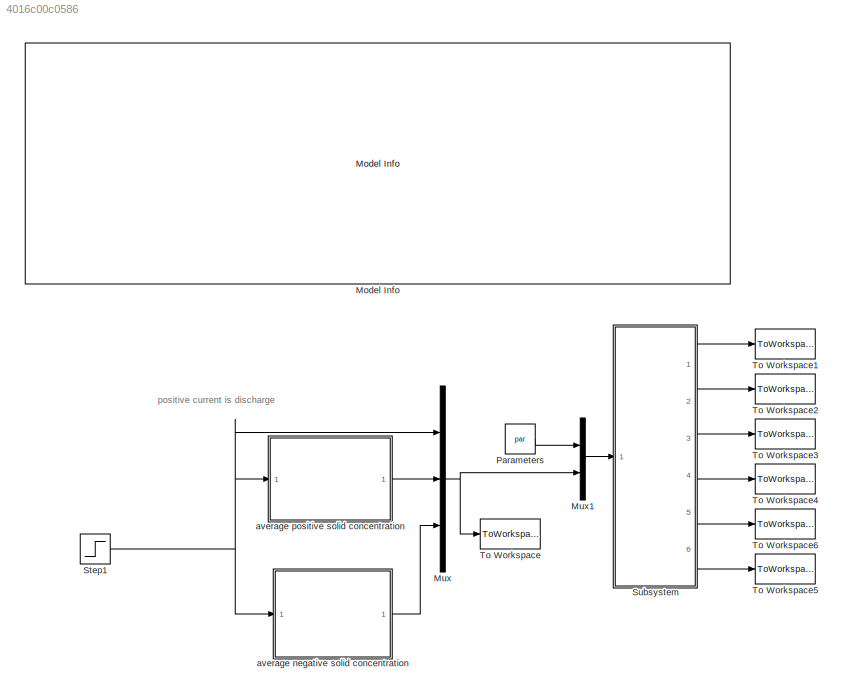
MODEL slx_4016c00c0586
KIND model
CONFIG AbsTol = auto
CONFIG EnableMultiTasking = on
CONFIG FixedStep = st
CONFIG MaxStep = 0.5
CONFIG MinStep = auto
CONFIG RelTol = 1e-3
CONFIG SampleTimeConstraint = Unconstrained
CONFIG Solver = ode3
CONFIG SolverName = ode3
CONFIG StartTime = 0
CONFIG StopTime = fin
BLOCK [Reference] Model Info  REF=simulink/Model-Wide
Utilities/Model Info
  Ports = []
  SourceBlock = simulink/Model-Wide\nUtilities/Model Info
  SourceProductBaseCode = SL
  SourceType = CMBlock
BLOCK [Mux] Mux
  DisplayOption = bar
  Inputs = 3
  Ports = [3, 1]
BLOCK [Mux] Mux1
  DisplayOption = bar
  Inputs = 2
  Ports = [2, 1]
BLOCK [Constant] Parameters
  Value = par
  VectorParams1D = off
BLOCK [Step] Step1
  After = 5
  SampleTime = 0
  Time = 0
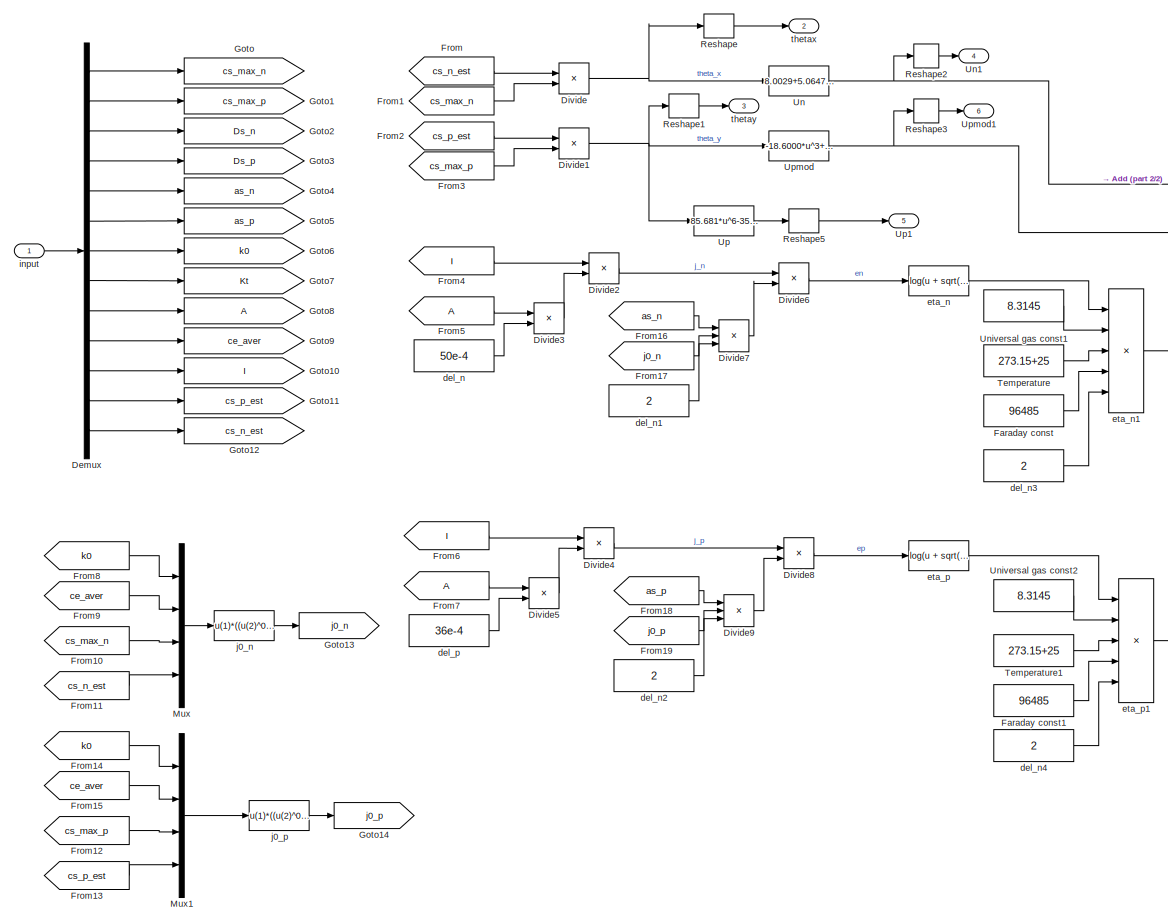
[diagram: Subsystem - part 1/2, center side, full height]
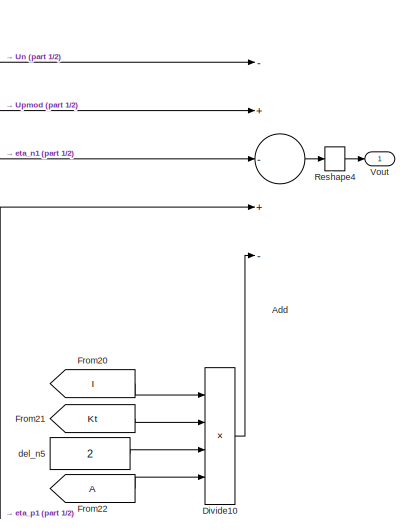
[diagram: Subsystem - part 2/2, middle right region]
BLOCK [SubSystem] Subsystem
  Ports = [1, 6]
  RequestExecContextInheritance = off
BLOCK [Sum] Subsystem/Add
  InputSameDT = off
  Inputs = -+-+-
  OutDataTypeStr = double
  Ports = [5, 1]
  SaturateOnIntegerOverflow = off
BLOCK [Demux] Subsystem/Demux
  DisplayOption = bar
  Outputs = 13
  Ports = [1, 13]
BLOCK [Product] Subsystem/Divide
  InputSameDT = off
  Inputs = */
  OutDataTypeStr = Inherit: Inherit via internal rule
  Ports = [2, 1]
  RndMeth = Floor
  SaturateOnIntegerOverflow = off
BLOCK [Product] Subsystem/Divide1
  InputSameDT = off
  Inputs = */
  OutDataTypeStr = Inherit: Inherit via internal rule
  Ports = [2, 1]
  RndMeth = Floor
  SaturateOnIntegerOverflow = off
BLOCK [Product] Subsystem/Divide10
  InputSameDT = off
  Inputs = ***/
  OutDataTypeStr = Inherit: Inherit via internal rule
  Ports = [4, 1]
  RndMeth = Floor
  SaturateOnIntegerOverflow = off
BLOCK [Product] Subsystem/Divide2
  InputSameDT = off
  Inputs = */
  OutDataTypeStr = Inherit: Inherit via internal rule
  Ports = [2, 1]
  RndMeth = Floor
  SaturateOnIntegerOverflow = off
BLOCK [Product] Subsystem/Divide3
  InputSameDT = off
  Inputs = **
  OutDataTypeStr = Inherit: Inherit via internal rule
  Ports = [2, 1]
  RndMeth = Floor
  SaturateOnIntegerOverflow = off
BLOCK [Product] Subsystem/Divide4
  InputSameDT = off
  Inputs = */
  OutDataTypeStr = Inherit: Inherit via internal rule
  Ports = [2, 1]
  RndMeth = Floor
  SaturateOnIntegerOverflow = off
BLOCK [Product] Subsystem/Divide5
  InputSameDT = off
  Inputs = **
  OutDataTypeStr = Inherit: Inherit via internal rule
  Ports = [2, 1]
  RndMeth = Floor
  SaturateOnIntegerOverflow = off
BLOCK [Product] Subsystem/Divide6
  InputSameDT = off
  Inputs = */
  OutDataTypeStr = Inherit: Inherit via internal rule
  Ports = [2, 1]
  RndMeth = Floor
  SaturateOnIntegerOverflow = off
BLOCK [Product] Subsystem/Divide7
  InputSameDT = off
  Inputs = ***
  OutDataTypeStr = Inherit: Inherit via internal rule
  Ports = [3, 1]
  RndMeth = Floor
  SaturateOnIntegerOverflow = off
BLOCK [Product] Subsystem/Divide8
  InputSameDT = off
  Inputs = */
  OutDataTypeStr = Inherit: Inherit via internal rule
  Ports = [2, 1]
  RndMeth = Floor
  SaturateOnIntegerOverflow = off
BLOCK [Product] Subsystem/Divide9
  InputSameDT = off
  Inputs = ***
  OutDataTypeStr = Inherit: Inherit via internal rule
  Ports = [3, 1]
  RndMeth = Floor
  SaturateOnIntegerOverflow = off
BLOCK [Constant] Subsystem/Faraday const
  Value = 96485
BLOCK [Constant] Subsystem/Faraday const1
  Value = 96485
BLOCK [From] Subsystem/From
  GotoTag = cs_n_est
BLOCK [From] Subsystem/From1
  GotoTag = cs_max_n
BLOCK [From] Subsystem/From10
  GotoTag = cs_max_n
BLOCK [From] Subsystem/From11
  GotoTag = cs_n_est
BLOCK [From] Subsystem/From12
  GotoTag = cs_max_p
BLOCK [From] Subsystem/From13
  GotoTag = cs_p_est
BLOCK [From] Subsystem/From14
  GotoTag = k0
BLOCK [From] Subsystem/From15
  GotoTag = ce_aver
BLOCK [From] Subsystem/From16
  GotoTag = as_n
BLOCK [From] Subsystem/From17
  GotoTag = j0_n
BLOCK [From] Subsystem/From18
  GotoTag = as_p
BLOCK [From] Subsystem/From19
  GotoTag = j0_p
BLOCK [From] Subsystem/From2
  GotoTag = cs_p_est
BLOCK [From] Subsystem/From20
  GotoTag = I
BLOCK [From] Subsystem/From21
  GotoTag = Kt
BLOCK [From] Subsystem/From22
BLOCK [From] Subsystem/From3
  GotoTag = cs_max_p
BLOCK [From] Subsystem/From4
  GotoTag = I
BLOCK [From] Subsystem/From5
BLOCK [From] Subsystem/From6
  GotoTag = I
BLOCK [From] Subsystem/From7
BLOCK [From] Subsystem/From8
  GotoTag = k0
BLOCK [From] Subsystem/From9
  GotoTag = ce_aver
BLOCK [Goto] Subsystem/Goto
  GotoTag = cs_max_n
BLOCK [Goto] Subsystem/Goto1
  GotoTag = cs_max_p
BLOCK [Goto] Subsystem/Goto10
  GotoTag = I
BLOCK [Goto] Subsystem/Goto11
  GotoTag = cs_p_est
BLOCK [Goto] Subsystem/Goto12
  GotoTag = cs_n_est
BLOCK [Goto] Subsystem/Goto13
  GotoTag = j0_n
BLOCK [Goto] Subsystem/Goto14
  GotoTag = j0_p
BLOCK [Goto] Subsystem/Goto2
  GotoTag = Ds_n
BLOCK [Goto] Subsystem/Goto3
  GotoTag = Ds_p
BLOCK [Goto] Subsystem/Goto4
  GotoTag = as_n
BLOCK [Goto] Subsystem/Goto5
  GotoTag = as_p
BLOCK [Goto] Subsystem/Goto6
  GotoTag = k0
BLOCK [Goto] Subsystem/Goto7
  GotoTag = Kt
BLOCK [Goto] Subsystem/Goto8
BLOCK [Goto] Subsystem/Goto9
  GotoTag = ce_aver
BLOCK [Mux] Subsystem/Mux
  DisplayOption = bar
  Ports = [4, 1]
BLOCK [Mux] Subsystem/Mux1
  DisplayOption = bar
  Ports = [4, 1]
BLOCK [Reshape] Subsystem/Reshape
  Ports = [1, 1]
BLOCK [Reshape] Subsystem/Reshape1
  Ports = [1, 1]
BLOCK [Reshape] Subsystem/Reshape2
  Ports = [1, 1]
BLOCK [Reshape] Subsystem/Reshape3
  Ports = [1, 1]
BLOCK [Reshape] Subsystem/Reshape4
  Ports = [1, 1]
BLOCK [Reshape] Subsystem/Reshape5
  Ports = [1, 1]
BLOCK [Constant] Subsystem/Temperature
  Value = 273.15+25
BLOCK [Constant] Subsystem/Temperature1
  Value = 273.15+25
BLOCK [Fcn] Subsystem/Un
  Expr = 8.0029+5.0647*u-12.578*u^0.5-8.6322e-4*u^(-1)+2.1765e-5*u^(3/2)-0.46016*exp(15.0*(0.06-u))-0.55364*exp(-2.4326*(u-0.92))
BLOCK [Outport] Subsystem/Un1
  IconDisplay = Port number
  Port = 4
  VectorParamsAs1DForOutWhenUnconnected = on
BLOCK [Constant] Subsystem/Universal gas const1
  Value = 8.3145
  VectorParams1D = off
BLOCK [Constant] Subsystem/Universal gas const2
  Value = 8.3145
BLOCK [Fcn] Subsystem/Up
  Expr = 85.681*u^6-357.70*u^5+613.89*u^4-555.65*u^3+281.06*u^2-76.648*u+13.1983 -0.30987*exp(5.657*u^115)
BLOCK [Outport] Subsystem/Up1
  IconDisplay = Port number
  Port = 5
  VectorParamsAs1DForOutWhenUnconnected = on
BLOCK [Fcn] Subsystem/Upmod
  Expr = -18.6000*u^3+   31.1854*u^2  -17.9895*u+    7.4810
BLOCK [Outport] Subsystem/Upmod1
  IconDisplay = Port number
  Port = 6
  VectorParamsAs1DForOutWhenUnconnected = on
BLOCK [Outport] Subsystem/Vout
  IconDisplay = Port number
  VectorParamsAs1DForOutWhenUnconnected = on
BLOCK [Constant] Subsystem/del_n
  Value = 50e-4
BLOCK [Constant] Subsystem/del_n1
  Value = 2
BLOCK [Constant] Subsystem/del_n2
  Value = 2
BLOCK [Constant] Subsystem/del_n3
  Value = 2
BLOCK [Constant] Subsystem/del_n4
  Value = 2
BLOCK [Constant] Subsystem/del_n5
  Value = 2
BLOCK [Constant] Subsystem/del_p
  Value = 36e-4
BLOCK [Fcn] Subsystem/eta_n
  Expr = log(u + sqrt(u^2 +1))
BLOCK [Product] Subsystem/eta_n1
  InputSameDT = off
  Inputs = ***/*
  OutDataTypeStr = Inherit: Inherit via internal rule
  Ports = [5, 1]
  RndMeth = Floor
  SaturateOnIntegerOverflow = off
BLOCK [Fcn] Subsystem/eta_p
  Expr = log(u + sqrt(u^2 +1))
BLOCK [Product] Subsystem/eta_p1
  InputSameDT = off
  Inputs = ***/*
  OutDataTypeStr = Inherit: Inherit via internal rule
  Ports = [5, 1]
  RndMeth = Floor
  SaturateOnIntegerOverflow = off
BLOCK [Inport] Subsystem/input
  IconDisplay = Port number
BLOCK [Fcn] Subsystem/j0_n
  Expr = u(1)*((u(2)^0.5)*((u(3)-u(4))^(0.5))*(u(4)^0.5))
BLOCK [Fcn] Subsystem/j0_p
  Expr = u(1)*((u(2)^0.5)*((u(3)-u(4))^(0.5))*(u(4)^0.5))
BLOCK [Outport] Subsystem/thetax
  IconDisplay = Port number
  Port = 2
  VectorParamsAs1DForOutWhenUnconnected = on
BLOCK [Outport] Subsystem/thetay
  IconDisplay = Port number
  Port = 3
  VectorParamsAs1DForOutWhenUnconnected = on
BLOCK [ToWorkspace] To Workspace
  MaxDataPoints = inf
  Ports = [1]
  SampleTime = -1
  Save2DSignal = 3-D array (concatenate along third dimension)
  VariableName = vout
BLOCK [ToWorkspace] To Workspace1
  MaxDataPoints = inf
  Ports = [1]
  SampleTime = -1
  Save2DSignal = 3-D array (concatenate along third dimension)
  VariableName = V
BLOCK [ToWorkspace] To Workspace2
  MaxDataPoints = inf
  Ports = [1]
  SampleTime = -1
  Save2DSignal = 3-D array (concatenate along third dimension)
  VariableName = th_x
BLOCK [ToWorkspace] To Workspace3
  MaxDataPoints = inf
  Ports = [1]
  SampleTime = -1
  Save2DSignal = 3-D array (concatenate along third dimension)
  VariableName = th_y
BLOCK [ToWorkspace] To Workspace4
  MaxDataPoints = inf
  Ports = [1]
  SampleTime = -1
  Save2DSignal = 3-D array (concatenate along third dimension)
  VariableName = Un
BLOCK [ToWorkspace] To Workspace5
  MaxDataPoints = inf
  Ports = [1]
  SampleTime = -1
  Save2DSignal = 3-D array (concatenate along third dimension)
  VariableName = Up_mod
BLOCK [ToWorkspace] To Workspace6
  MaxDataPoints = inf
  Ports = [1]
  SampleTime = -1
  Save2DSignal = 3-D array (concatenate along third dimension)
  VariableName = Up
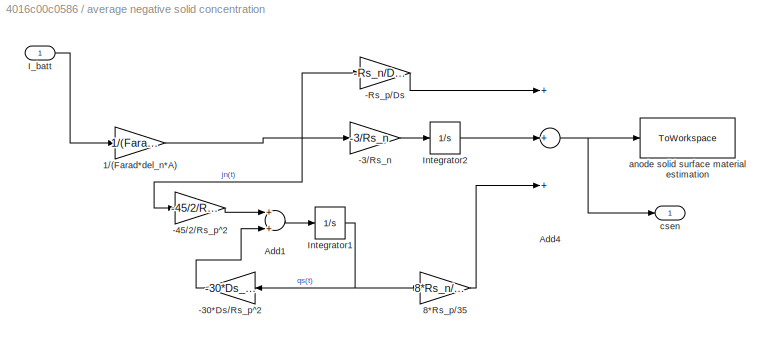
BLOCK [SubSystem] average negative solid concentration  
  Ports = [1, 1]
  RequestExecContextInheritance = off
BLOCK [Gain] average negative solid concentration  /-3//Rs_n
  Gain = -3/Rs_n
  OutDataTypeStr = Inherit: Inherit via internal rule
  ParamDataTypeStr = Inherit: Inherit via internal rule
  SaturateOnIntegerOverflow = off
BLOCK [Gain] average negative solid concentration  /-30*Ds//Rs_p^2
  Gain = -30*Ds_n/Rs_n^2
  OutDataTypeStr = Inherit: Inherit via internal rule
  ParamDataTypeStr = Inherit: Inherit via internal rule
  SaturateOnIntegerOverflow = off
BLOCK [Gain] average negative solid concentration  /-45//2//Rs_p^2
  Gain = -45/2/Rs_p^2
  OutDataTypeStr = Inherit: Inherit via internal rule
  ParamDataTypeStr = Inherit: Inherit via internal rule
  SaturateOnIntegerOverflow = off
BLOCK [Gain] average negative solid concentration  /-Rs_p//Ds
  Gain = -Rs_n/Ds_n
  OutDataTypeStr = Inherit: Inherit via internal rule
  ParamDataTypeStr = Inherit: Inherit via internal rule
  SaturateOnIntegerOverflow = off
BLOCK [Gain] average negative solid concentration  /1//(Farad*del_n*A)
  Gain = 1/(Farad*del_n*A)
  OutDataTypeStr = Inherit: Inherit via internal rule
  ParamDataTypeStr = Inherit: Inherit via internal rule
  SaturateOnIntegerOverflow = off
BLOCK [Gain] average negative solid concentration  /8*Rs_p//35
  Gain = 8*Rs_n/35
  OutDataTypeStr = Inherit: Inherit via internal rule
  ParamDataTypeStr = Inherit: Inherit via internal rule
  SaturateOnIntegerOverflow = off
BLOCK [Sum] average negative solid concentration  /Add1
  InputSameDT = off
  OutDataTypeStr = Inherit: Inherit via internal rule
  Ports = [2, 1]
  SaturateOnIntegerOverflow = off
BLOCK [Sum] average negative solid concentration  /Add4
  InputSameDT = off
  Inputs = +++
  OutDataTypeStr = Inherit: Inherit via internal rule
  Ports = [3, 1]
  SaturateOnIntegerOverflow = off
BLOCK [Inport] average negative solid concentration  /I_batt
  IconDisplay = Port number
BLOCK [Integrator] average negative solid concentration  /Integrator1
  InitialCondition = cs_init_n
  Ports = [1, 1]
BLOCK [Integrator] average negative solid concentration  /Integrator2
  InitialCondition = cs_init_n
  Ports = [1, 1]
BLOCK [ToWorkspace] average negative solid concentration  /anode solid surface material estimation
  MaxDataPoints = inf
  Ports = [1]
  SampleTime = -1
  Save2DSignal = 3-D array (concatenate along third dimension)
  VariableName = csen
BLOCK [Outport] average negative solid concentration  /csen
  IconDisplay = Port number
  VectorParamsAs1DForOutWhenUnconnected = on
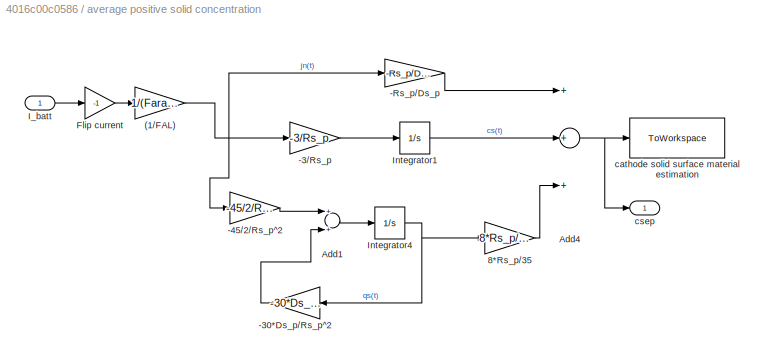
BLOCK [SubSystem] average positive solid concentration
  Ports = [1, 1]
  RequestExecContextInheritance = off
BLOCK [Gain] average positive solid concentration/(1//FAL)
  Gain = 1/(Farad*del_p*A)
  OutDataTypeStr = Inherit: Inherit via internal rule
  ParamDataTypeStr = Inherit: Inherit via internal rule
  SaturateOnIntegerOverflow = off
BLOCK [Gain] average positive solid concentration/-3//Rs_p 
  Gain = -3/Rs_p
  OutDataTypeStr = Inherit: Inherit via internal rule
  ParamDataTypeStr = Inherit: Inherit via internal rule
  SaturateOnIntegerOverflow = off
BLOCK [Gain] average positive solid concentration/-30*Ds_p//Rs_p^2
  Gain = -30*Ds_p/Rs_p^2
  OutDataTypeStr = Inherit: Inherit via internal rule
  ParamDataTypeStr = Inherit: Inherit via internal rule
  SaturateOnIntegerOverflow = off
BLOCK [Gain] average positive solid concentration/-45//2//Rs_p^2
  Gain = -45/2/Rs_p^2
  OutDataTypeStr = Inherit: Inherit via internal rule
  ParamDataTypeStr = Inherit: Inherit via internal rule
  SaturateOnIntegerOverflow = off
BLOCK [Gain] average positive solid concentration/-Rs_p//Ds_p
  Gain = -Rs_p/Ds_p
  OutDataTypeStr = Inherit: Inherit via internal rule
  ParamDataTypeStr = Inherit: Inherit via internal rule
  SaturateOnIntegerOverflow = off
BLOCK [Gain] average positive solid concentration/8*Rs_p//35
  Gain = 8*Rs_p/35
  OutDataTypeStr = Inherit: Inherit via internal rule
  ParamDataTypeStr = Inherit: Inherit via internal rule
  SaturateOnIntegerOverflow = off
BLOCK [Sum] average positive solid concentration/Add1
  InputSameDT = off
  OutDataTypeStr = Inherit: Inherit via internal rule
  Ports = [2, 1]
  SaturateOnIntegerOverflow = off
BLOCK [Sum] average positive solid concentration/Add4
  InputSameDT = off
  Inputs = +++
  OutDataTypeStr = Inherit: Inherit via internal rule
  Ports = [3, 1]
  SaturateOnIntegerOverflow = off
BLOCK [Gain] average positive solid concentration/Flip current
  Gain = -1
  OutDataTypeStr = Inherit: Inherit via internal rule
  ParamDataTypeStr = Inherit: Inherit via internal rule
  SaturateOnIntegerOverflow = off
BLOCK [Inport] average positive solid concentration/I_batt
  IconDisplay = Port number
BLOCK [Integrator] average positive solid concentration/Integrator1
  InitialCondition = cs_init_p
  LimitOutput = on
  Ports = [1, 1]
BLOCK [Integrator] average positive solid concentration/Integrator4
  InitialCondition = cs_init_p
  LimitOutput = on
  Ports = [1, 1]
BLOCK [ToWorkspace] average positive solid concentration/cathode solid surface material estimation
  MaxDataPoints = inf
  Ports = [1]
  SampleTime = -1
  Save2DSignal = 3-D array (concatenate along third dimension)
  VariableName = csep
BLOCK [Outport] average positive solid concentration/csep
  IconDisplay = Port number
  VectorParamsAs1DForOutWhenUnconnected = on
ANNOTATION (root): positive current is discharge
LINE Mux1:1 -> Subsystem:1
NET Mux:1 -> Mux1:2, To Workspace:1
LINE Parameters:1 -> Mux1:1
NET Step1:1 -> Mux:1, average negative solid concentration  :1, average positive solid concentration:1
LINE Subsystem/Add:1 -> Subsystem/Reshape4:1
LINE Subsystem/Demux:1 -> Subsystem/Goto:1
LINE Subsystem/Demux:10 -> Subsystem/Goto9:1
LINE Subsystem/Demux:11 -> Subsystem/Goto10:1
LINE Subsystem/Demux:12 -> Subsystem/Goto11:1
LINE Subsystem/Demux:13 -> Subsystem/Goto12:1
LINE Subsystem/Demux:2 -> Subsystem/Goto1:1
LINE Subsystem/Demux:3 -> Subsystem/Goto2:1
LINE Subsystem/Demux:4 -> Subsystem/Goto3:1
LINE Subsystem/Demux:5 -> Subsystem/Goto4:1
LINE Subsystem/Demux:6 -> Subsystem/Goto5:1
LINE Subsystem/Demux:7 -> Subsystem/Goto6:1
LINE Subsystem/Demux:8 -> Subsystem/Goto7:1
LINE Subsystem/Demux:9 -> Subsystem/Goto8:1
LINE Subsystem/Divide10:1 -> Subsystem/Add:5
NET Subsystem/Divide1:1 -> Subsystem/Reshape1:1, Subsystem/Up:1, Subsystem/Upmod:1
LINE Subsystem/Divide2:1 -> Subsystem/Divide6:1
LINE Subsystem/Divide3:1 -> Subsystem/Divide2:2
LINE Subsystem/Divide4:1 -> Subsystem/Divide8:1
LINE Subsystem/Divide5:1 -> Subsystem/Divide4:2
LINE Subsystem/Divide6:1 -> Subsystem/eta_n:1
LINE Subsystem/Divide7:1 -> Subsystem/Divide6:2
LINE Subsystem/Divide8:1 -> Subsystem/eta_p:1
LINE Subsystem/Divide9:1 -> Subsystem/Divide8:2
NET Subsystem/Divide:1 -> Subsystem/Reshape:1, Subsystem/Un:1
LINE Subsystem/Faraday const1:1 -> Subsystem/eta_p1:4
LINE Subsystem/Faraday const:1 -> Subsystem/eta_n1:4
LINE Subsystem/From10:1 -> Subsystem/Mux:3
LINE Subsystem/From11:1 -> Subsystem/Mux:4
LINE Subsystem/From12:1 -> Subsystem/Mux1:3
LINE Subsystem/From13:1 -> Subsystem/Mux1:4
LINE Subsystem/From14:1 -> Subsystem/Mux1:1
LINE Subsystem/From15:1 -> Subsystem/Mux1:2
LINE Subsystem/From16:1 -> Subsystem/Divide7:1
LINE Subsystem/From17:1 -> Subsystem/Divide7:2
LINE Subsystem/From18:1 -> Subsystem/Divide9:1
LINE Subsystem/From19:1 -> Subsystem/Divide9:2
LINE Subsystem/From1:1 -> Subsystem/Divide:2
LINE Subsystem/From20:1 -> Subsystem/Divide10:1
LINE Subsystem/From21:1 -> Subsystem/Divide10:2
LINE Subsystem/From22:1 -> Subsystem/Divide10:4
LINE Subsystem/From2:1 -> Subsystem/Divide1:1
LINE Subsystem/From3:1 -> Subsystem/Divide1:2
LINE Subsystem/From4:1 -> Subsystem/Divide2:1
LINE Subsystem/From5:1 -> Subsystem/Divide3:1
LINE Subsystem/From6:1 -> Subsystem/Divide4:1
LINE Subsystem/From7:1 -> Subsystem/Divide5:1
LINE Subsystem/From8:1 -> Subsystem/Mux:1
LINE Subsystem/From9:1 -> Subsystem/Mux:2
LINE Subsystem/From:1 -> Subsystem/Divide:1
LINE Subsystem/Mux1:1 -> Subsystem/j0_p:1
LINE Subsystem/Mux:1 -> Subsystem/j0_n:1
LINE Subsystem/Reshape1:1 -> Subsystem/thetay:1
LINE Subsystem/Reshape2:1 -> Subsystem/Un1:1
LINE Subsystem/Reshape3:1 -> Subsystem/Upmod1:1
LINE Subsystem/Reshape4:1 -> Subsystem/Vout:1
LINE Subsystem/Reshape5:1 -> Subsystem/Up1:1
LINE Subsystem/Reshape:1 -> Subsystem/thetax:1
LINE Subsystem/Temperature1:1 -> Subsystem/eta_p1:3
LINE Subsystem/Temperature:1 -> Subsystem/eta_n1:3
NET Subsystem/Un:1 -> Subsystem/Add:1, Subsystem/Reshape2:1
LINE Subsystem/Universal gas const1:1 -> Subsystem/eta_n1:2
LINE Subsystem/Universal gas const2:1 -> Subsystem/eta_p1:2
LINE Subsystem/Up:1 -> Subsystem/Reshape5:1
NET Subsystem/Upmod:1 -> Subsystem/Add:2, Subsystem/Reshape3:1
LINE Subsystem/del_n1:1 -> Subsystem/Divide7:3
LINE Subsystem/del_n2:1 -> Subsystem/Divide9:3
LINE Subsystem/del_n3:1 -> Subsystem/eta_n1:5
LINE Subsystem/del_n4:1 -> Subsystem/eta_p1:5
LINE Subsystem/del_n5:1 -> Subsystem/Divide10:3
LINE Subsystem/del_n:1 -> Subsystem/Divide3:2
LINE Subsystem/del_p:1 -> Subsystem/Divide5:2
LINE Subsystem/eta_n1:1 -> Subsystem/Add:3
LINE Subsystem/eta_n:1 -> Subsystem/eta_n1:1
LINE Subsystem/eta_p1:1 -> Subsystem/Add:4
LINE Subsystem/eta_p:1 -> Subsystem/eta_p1:1
LINE Subsystem/input:1 -> Subsystem/Demux:1
LINE Subsystem/j0_n:1 -> Subsystem/Goto13:1
LINE Subsystem/j0_p:1 -> Subsystem/Goto14:1
LINE Subsystem:1 -> To Workspace1:1
LINE Subsystem:2 -> To Workspace2:1
LINE Subsystem:3 -> To Workspace3:1
LINE Subsystem:4 -> To Workspace4:1
LINE Subsystem:5 -> To Workspace6:1
LINE Subsystem:6 -> To Workspace5:1
LINE average negative solid concentration  /-3//Rs_n:1 -> average negative solid concentration  /Integrator2:1
LINE average negative solid concentration  /-30*Ds//Rs_p^2:1 -> average negative solid concentration  /Add1:2
LINE average negative solid concentration  /-45//2//Rs_p^2:1 -> average negative solid concentration  /Add1:1
LINE average negative solid concentration  /-Rs_p//Ds:1 -> average negative solid concentration  /Add4:1
NET average negative solid concentration  /1//(Farad*del_n*A):1 -> average negative solid concentration  /-3//Rs_n:1, average negative solid concentration  /-45//2//Rs_p^2:1, average negative solid concentration  /-Rs_p//Ds:1
LINE average negative solid concentration  /8*Rs_p//35:1 -> average negative solid concentration  /Add4:3
LINE average negative solid concentration  /Add1:1 -> average negative solid concentration  /Integrator1:1
NET average negative solid concentration  /Add4:1 -> average negative solid concentration  /anode solid surface material estimation:1, average negative solid concentration  /csen:1
LINE average negative solid concentration  /I_batt:1 -> average negative solid concentration  /1//(Farad*del_n*A):1
NET average negative solid concentration  /Integrator1:1 -> average negative solid concentration  /-30*Ds//Rs_p^2:1, average negative solid concentration  /8*Rs_p//35:1
LINE average negative solid concentration  /Integrator2:1 -> average negative solid concentration  /Add4:2
LINE average negative solid concentration  :1 -> Mux:3
NET average positive solid concentration/(1//FAL):1 -> average positive solid concentration/-3//Rs_p :1, average positive solid concentration/-45//2//Rs_p^2:1, average positive solid concentration/-Rs_p//Ds_p:1
LINE average positive solid concentration/-3//Rs_p :1 -> average positive solid concentration/Integrator1:1
LINE average positive solid concentration/-30*Ds_p//Rs_p^2:1 -> average positive solid concentration/Add1:2
LINE average positive solid concentration/-45//2//Rs_p^2:1 -> average positive solid concentration/Add1:1
LINE average positive solid concentration/-Rs_p//Ds_p:1 -> average positive solid concentration/Add4:1
LINE average positive solid concentration/8*Rs_p//35:1 -> average positive solid concentration/Add4:3
LINE average positive solid concentration/Add1:1 -> average positive solid concentration/Integrator4:1
NET average positive solid concentration/Add4:1 -> average positive solid concentration/cathode solid surface material estimation:1, average positive solid concentration/csep:1
LINE average positive solid concentration/Flip current:1 -> average positive solid concentration/(1//FAL):1
LINE average positive solid concentration/I_batt:1 -> average positive solid concentration/Flip current:1
LINE average positive solid concentration/Integrator1:1 -> average positive solid concentration/Add4:2
NET average positive solid concentration/Integrator4:1 -> average positive solid concentration/-30*Ds_p//Rs_p^2:1, average positive solid concentration/8*Rs_p//35:1
LINE average positive solid concentration:1 -> Mux:2
note: NET lines group one-source signal fan-out (src -> all destinations, sorted); 1:1 wires keep LINE
